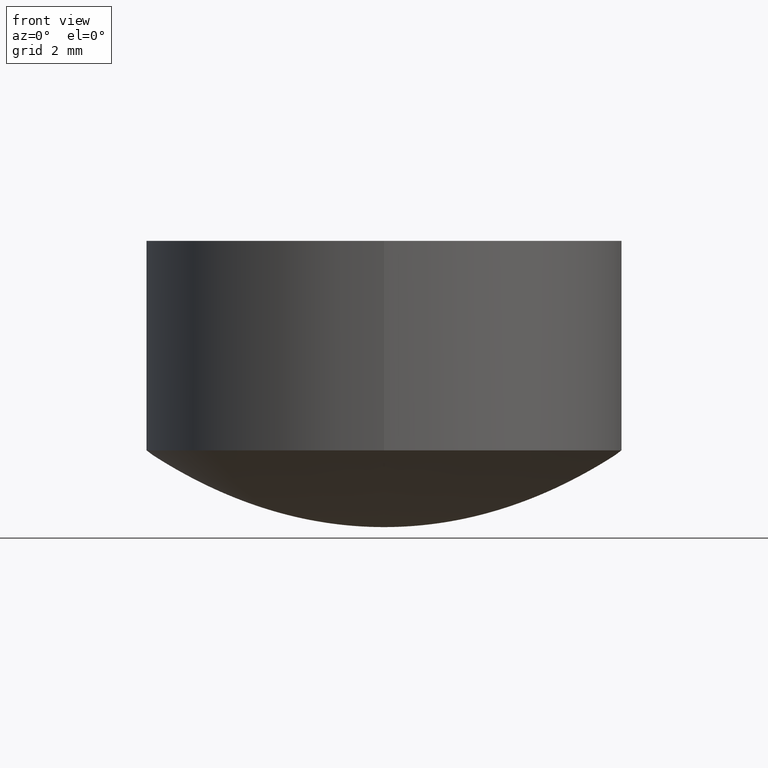
[diagram: clean part render]
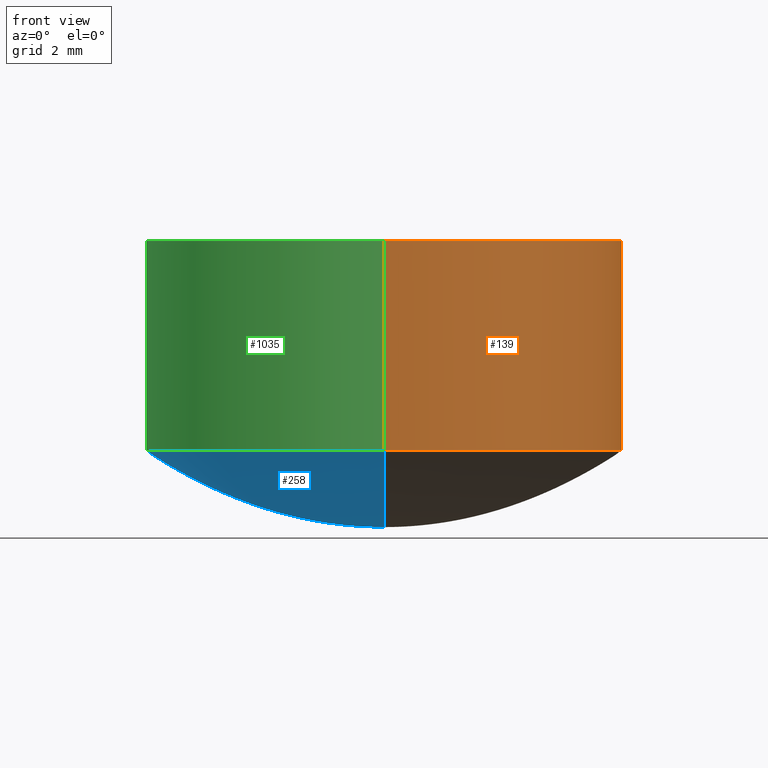
[diagram: same view with three faces highlighted in distinct colors, each labeled with its STEP entity id]
A machine part, front view with three faces highlighted in distinct colors.
Their STEP definitions:

[orange] entity #139 — the highlighted cylindrical surface (partial cylindrical patch) has radius 6.25 mm, axis along (0, 0, -1).
#5 = EDGE_CURVE ( 'NONE', #53, #728, #659, .T. ) ;
#46 = ORIENTED_EDGE ( 'NONE', *, *, #5, .T. ) ;
#53 = VERTEX_POINT ( 'NONE', #892 ) ;
#62 = DIRECTION ( 'NONE',  ( 0.000000000000000000, 1.000000000000000000, 0.000000000000000000 ) ) ;
#77 = CARTESIAN_POINT ( 'NONE',  ( 7.654042494670957606E-16, -6.250000000000000000, 7.875000000000000000 ) ) ;
#127 = DIRECTION ( 'NONE',  ( 0.000000000000000000, 0.000000000000000000, 1.000000000000000000 ) ) ;
#139 = ADVANCED_FACE ( 'NONE', ( #299 ), #644, .T. ) ;
#141 = DIRECTION ( 'NONE',  ( 0.000000000000000000, 0.000000000000000000, -1.000000000000000000 ) ) ;
#142 = VERTEX_POINT ( 'NONE', #884 ) ;
#171 = VECTOR ( 'NONE', #407, 1000.000000000000000 ) ;
#184 = DIRECTION ( 'NONE',  ( 0.000000000000000000, 0.000000000000000000, -1.000000000000000000 ) ) ;
#195 = AXIS2_PLACEMENT_3D ( 'NONE', #555, #386, #244 ) ;
#240 = CARTESIAN_POINT ( 'NONE',  ( 0.000000000000000000, 6.250000000000000000, 7.875000000000000000 ) ) ;
#244 = DIRECTION ( 'NONE',  ( 0.000000000000000000, 1.000000000000000000, 0.000000000000000000 ) ) ;
#284 = VECTOR ( 'NONE', #184, 1000.000000000000000 ) ;
#288 = ORIENTED_EDGE ( 'NONE', *, *, #486, .F. ) ;
#299 = FACE_OUTER_BOUND ( 'NONE', #561, .T. ) ;
#386 = DIRECTION ( 'NONE',  ( 0.000000000000000000, 0.000000000000000000, -1.000000000000000000 ) ) ;
#407 = DIRECTION ( 'NONE',  ( 0.000000000000000000, 0.000000000000000000, -1.000000000000000000 ) ) ;
#486 = EDGE_CURVE ( 'NONE', #53, #960, #490, .T. ) ;
#490 = LINE ( 'NONE', #240, #171 ) ;
#500 = EDGE_CURVE ( 'NONE', #142, #960, #1082, .T. ) ;
#555 = CARTESIAN_POINT ( 'NONE',  ( 0.000000000000000000, 0.000000000000000000, 7.500000000000000000 ) ) ;
#561 = EDGE_LOOP ( 'NONE', ( #46, #886, #733, #288 ) ) ;
#594 = CARTESIAN_POINT ( 'NONE',  ( 7.654042494670957606E-16, -6.250000000000000000, 7.500000000000000000 ) ) ;
#599 = LINE ( 'NONE', #77, #284 ) ;
#644 = CYLINDRICAL_SURFACE ( 'NONE', #932, 6.250000000000000000 ) ;
#659 = CIRCLE ( 'NONE', #195, 6.250000000000000000 ) ;
#721 = CARTESIAN_POINT ( 'NONE',  ( 0.000000000000000000, 0.000000000000000000, 7.875000000000000000 ) ) ;
#728 = VERTEX_POINT ( 'NONE', #594 ) ;
#733 = ORIENTED_EDGE ( 'NONE', *, *, #500, .T. ) ;
#736 = CARTESIAN_POINT ( 'NONE',  ( 0.000000000000000000, 0.000000000000000000, 2.011993405105170218 ) ) ;
#765 = CARTESIAN_POINT ( 'NONE',  ( 0.000000000000000000, 6.250000000000000000, 2.011993405105170218 ) ) ;
#788 = AXIS2_PLACEMENT_3D ( 'NONE', #736, #127, #1042 ) ;
#884 = CARTESIAN_POINT ( 'NONE',  ( 7.654042494670957606E-16, -6.250000000000000000, 2.011993405105170218 ) ) ;
#886 = ORIENTED_EDGE ( 'NONE', *, *, #959, .T. ) ;
#892 = CARTESIAN_POINT ( 'NONE',  ( 0.000000000000000000, 6.250000000000000000, 7.500000000000000000 ) ) ;
#932 = AXIS2_PLACEMENT_3D ( 'NONE', #721, #141, #62 ) ;
#959 = EDGE_CURVE ( 'NONE', #728, #142, #599, .T. ) ;
#960 = VERTEX_POINT ( 'NONE', #765 ) ;
#1042 = DIRECTION ( 'NONE',  ( 0.000000000000000000, 1.000000000000000000, 0.000000000000000000 ) ) ;
#1082 = CIRCLE ( 'NONE', #788, 6.250000000000000000 ) ;

[blue] entity #258 — the highlighted face is a freeform B-spline surface patch.
#1 = CARTESIAN_POINT ( 'NONE',  ( -3.189184372779570394E-17, -0.2604166666666670182, 0.003158548302291759938 ) ) ;
#3 = CARTESIAN_POINT ( 'NONE',  ( 0.000000000000000000, 5.403645833333329485, 1.490662127284529959 ) ) ;
#4 = CARTESIAN_POINT ( 'NONE',  ( -8.463541666666658969, -4.231770833333329485, 0.9046987737912409733 ) ) ;
#8 = CARTESIAN_POINT ( 'NONE',  ( -1.692708333333333703, -0.8463541666666668517, 0.03539781309837600198 ) ) ;
#10 = CARTESIAN_POINT ( 'NONE',  ( 0.000000000000000000, 5.533854166666669627, 1.565382453900790116 ) ) ;
#11 = CARTESIAN_POINT ( 'NONE',  ( 0.000000000000000000, 3.255208333333329929, 0.5315591981719010040 ) ) ;
#14 = CARTESIAN_POINT ( 'NONE',  ( -6.378368745559127230E-17, -0.5208333333333330373, 0.01326836802159780081 ) ) ;
#16 = CARTESIAN_POINT ( 'NONE',  ( 0.000000000000000000, 5.338541666666670515, 1.454036125696430037 ) ) ;
#17 = CARTESIAN_POINT ( 'NONE',  ( -4.225669293932920496E-16, -3.450520833333330373, 0.5980296746302240507 ) ) ;
#20 = CARTESIAN_POINT ( 'NONE',  ( 0.000000000000000000, 4.427083333333329485, 0.9917192555910387952 ) ) ;
#21 = CARTESIAN_POINT ( 'NONE',  ( -4.943235777808322740E-16, -4.036458333333330373, 0.8218521257202150432 ) ) ;
#24 = CARTESIAN_POINT ( 'NONE',  ( 0.000000000000000000, 1.041666666666670071, 0.05374797635312900113 ) ) ;
#25 = CARTESIAN_POINT ( 'NONE',  ( -5.598958333333338366, -2.799479166666668739, 0.3920531115882679996 ) ) ;
#29 = CARTESIAN_POINT ( 'NONE',  ( 0.000000000000000000, 0.06510416666666669905, 0.000000000000000000 ) ) ;
#32 = CARTESIAN_POINT ( 'NONE',  ( -7.161458333333340143, -3.580729166666669627, 0.6445915719321291260 ) ) ;
#37 = CARTESIAN_POINT ( 'NONE',  ( 0.000000000000000000, 1.302083333333329929, 0.08414911724075489763 ) ) ;
#39 = CARTESIAN_POINT ( 'NONE',  ( 0.000000000000000000, 5.794270833333330373, 1.720722017432400053 ) ) ;
#40 = CARTESIAN_POINT ( 'NONE',  ( 0.000000000000000000, 1.432291666666670071, 0.1019000922679149934 ) ) ;
#41 = CARTESIAN_POINT ( 'NONE',  ( -4.427083333333338366, -2.213541666666669183, 0.2443439133051079903 ) ) ;
#44 = CARTESIAN_POINT ( 'NONE',  ( -7.972960931948918898E-17, -0.6510416666666670737, 0.02085353383561979954 ) ) ;
#48 =( BOUNDED_SURFACE ( )  B_SPLINE_SURFACE ( 3, 3, ( 
 ( #121, #302, #895, #1062 ),
 ( #984, #309, #631, #315 ),
 ( #891, #471, #980, #639 ),
 ( #403, #320, #651, #476 ),
 ( #973, #465, #221, #794 ),
 ( #39, #226, #968, #217 ),
 ( #801, #1058, #131, #835 ),
 ( #568, #332, #993, #162 ),
 ( #415, #413, #494, #740 ),
 ( #496, #927, #744, #1080 ),
 ( #155, #1077, #660, #1000 ),
 ( #79, #418, #251, #241 ),
 ( #68, #918, #667, #914 ),
 ( #575, #654, #749, #326 ),
 ( #826, #564, #329, #656 ),
 ( #503, #921, #933, #75 ),
 ( #499, #150, #243, #910 ),
 ( #340, #1005, #571, #996 ),
 ( #71, #256, #246, #582 ),
 ( #147, #821, #831, #168 ),
 ( #509, #841, #84, #409 ),
 ( #425, #755, #4, #347 ),
 ( #673, #737, #1074, #849 ),
 ( #860, #946, #96, #21 ),
 ( #531, #285, #695, #103 ),
 ( #537, #191, #876, #91 ),
 ( #432, #761, #1024, #454 ),
 ( #685, #445, #766, #438 ),
 ( #197, #855, #32, #361 ),
 ( #679, #515, #375, #17 ),
 ( #870, #773, #587, #273 ),
 ( #11, #1018, #449, #185 ),
 ( #114, #934, #178, #520 ),
 ( #268, #204, #785, #279 ),
 ( #525, #355, #601, #595 ),
 ( #940, #366, #690, #1029 ),
 ( #109, #780, #25, #605 ),
 ( #955, #950, #370, #1034 ),
 ( #610, #1011, #262, #556 ),
 ( #719, #462, #540, #1049 ),
 ( #881, #815, #123, #547 ),
 ( #474, #798, #136, #643 ),
 ( #629, #790, #41, #229 ),
 ( #61, #636, #55, #49 ),
 ( #703, #983, #307, #893 ),
 ( #224, #398, #1044, #804 ),
 ( #977, #559, #129, #889 ),
 ( #468, #1040, #140, #972 ),
 ( #1061, #897, #480, #297 ),
 ( #903, #551, #810, #214 ),
 ( #384, #487, #291, #712 ),
 ( #37, #117, #300, #219 ),
 ( #617, #390, #1056, #961 ),
 ( #381, #208, #621, #708 ),
 ( #725, #313, #966, #164 ),
 ( #838, #259, #909, #923 ),
 ( #357, #87, #8, #735 ),
 ( #406, #351, #434, #670 ),
 ( #650, #1008, #1015, #146 ),
 ( #428, #319, #663, #14 ),
 ( #929, #584, #343, #579 ),
 ( #846, #682, #264, #591 ),
 ( #402, #1002, #239, #1 ),
 ( #492, #563, #420, #942 ),
 ( #81, #172, #507, #752 ),
 ( #676, #253, #522, #512 ) ),
 .UNSPECIFIED., .F., .F., .T. ) 
 B_SPLINE_SURFACE_WITH_KNOTS ( ( 4, 2, 2, 2, 2, 2, 2, 2, 2, 2, 2, 2, 2, 2, 2, 2, 2, 2, 2, 2, 2, 2, 2, 2, 2, 2, 2, 2, 2, 2, 2, 2, 4 ),
 ( 4, 4 ),
 ( -1.000000000000000000, -0.9687500000000000000, -0.9375000000000000000, -0.9062500000000000000, -0.8750000000000000000, -0.8437500000000000000, -0.8125000000000000000, -0.7812500000000000000, -0.7500000000000000000, -0.7187500000000000000, -0.6875000000000000000, -0.6562500000000000000, -0.6250000000000000000, -0.5937500000000000000, -0.5625000000000000000, -0.5312500000000000000, -0.5000000000000000000, -0.4687500000000000000, -0.4375000000000000000, -0.4062500000000000000, -0.3750000000000000000, -0.3437500000000000000, -0.3125000000000000000, -0.2812500000000000000, -0.2500000000000000000, -0.2187500000000000000, -0.1875000000000000000, -0.1562500000000000000, -0.1250000000000000000, -0.09375000000000000000, -0.06250000000000000000, -0.03125000000000000000, 0.000000000000000000 ),
 ( 0.000000000000000000, 1.000000000000000000 ),
 .UNSPECIFIED. ) 
 GEOMETRIC_REPRESENTATION_ITEM ( )  RATIONAL_B_SPLINE_SURFACE ( (
 ( 1.000000000000000000, 0.3333333333333334259, 0.3333333333333334259, 1.000000000000000000),
 ( 1.000000000000000000, 0.3333333333333334259, 0.3333333333333334259, 1.000000000000000000),
 ( 1.000000000000000000, 0.3333333333333334259, 0.3333333333333334259, 1.000000000000000000),
 ( 1.000000000000000000, 0.3333333333333334259, 0.3333333333333334259, 1.000000000000000000),
 ( 1.000000000000000000, 0.3333333333333334259, 0.3333333333333334259, 1.000000000000000000),
 ( 1.000000000000000000, 0.3333333333333334259, 0.3333333333333334259, 1.000000000000000000),
 ( 1.000000000000000000, 0.3333333333333334259, 0.3333333333333334259, 1.000000000000000000),
 ( 1.000000000000000000, 0.3333333333333334259, 0.3333333333333334259, 1.000000000000000000),
 ( 1.000000000000000000, 0.3333333333333334259, 0.3333333333333334259, 1.000000000000000000),
 ( 1.000000000000000000, 0.3333333333333334259, 0.3333333333333334259, 1.000000000000000000),
 ( 1.000000000000000000, 0.3333333333333334259, 0.3333333333333334259, 1.000000000000000000),
 ( 1.000000000000000000, 0.3333333333333334259, 0.3333333333333334259, 1.000000000000000000),
 ( 1.000000000000000000, 0.3333333333333334259, 0.3333333333333334259, 1.000000000000000000),
 ( 1.000000000000000000, 0.3333333333333334259, 0.3333333333333334259, 1.000000000000000000),
 ( 1.000000000000000000, 0.3333333333333334259, 0.3333333333333334259, 1.000000000000000000),
 ( 1.000000000000000000, 0.3333333333333334259, 0.3333333333333334259, 1.000000000000000000),
 ( 1.000000000000000000, 0.3333333333333334259, 0.3333333333333334259, 1.000000000000000000),
 ( 1.000000000000000000, 0.3333333333333334259, 0.3333333333333334259, 1.000000000000000000),
 ( 1.000000000000000000, 0.3333333333333334259, 0.3333333333333334259, 1.000000000000000000),
 ( 1.000000000000000000, 0.3333333333333334259, 0.3333333333333334259, 1.000000000000000000),
 ( 1.000000000000000000, 0.3333333333333334259, 0.3333333333333334259, 1.000000000000000000),
 ( 1.000000000000000000, 0.3333333333333334259, 0.3333333333333334259, 1.000000000000000000),
 ( 1.000000000000000000, 0.3333333333333334259, 0.3333333333333334259, 1.000000000000000000),
 ( 1.000000000000000000, 0.3333333333333334259, 0.3333333333333334259, 1.000000000000000000),
 ( 1.000000000000000000, 0.3333333333333334259, 0.3333333333333334259, 1.000000000000000000),
 ( 1.000000000000000000, 0.3333333333333334259, 0.3333333333333334259, 1.000000000000000000),
 ( 1.000000000000000000, 0.3333333333333334259, 0.3333333333333334259, 1.000000000000000000),
 ( 1.000000000000000000, 0.3333333333333334259, 0.3333333333333334259, 1.000000000000000000),
 ( 1.000000000000000000, 0.3333333333333334259, 0.3333333333333334259, 1.000000000000000000),
 ( 1.000000000000000000, 0.3333333333333334259, 0.3333333333333334259, 1.000000000000000000),
 ( 1.000000000000000000, 0.3333333333333334259, 0.3333333333333334259, 1.000000000000000000),
 ( 1.000000000000000000, 0.3333333333333334259, 0.3333333333333334259, 1.000000000000000000),
 ( 1.000000000000000000, 0.3333333333333334259, 0.3333333333333334259, 1.000000000000000000),
 ( 1.000000000000000000, 0.3333333333333334259, 0.3333333333333334259, 1.000000000000000000),
 ( 1.000000000000000000, 0.3333333333333334259, 0.3333333333333334259, 1.000000000000000000),
 ( 1.000000000000000000, 0.3333333333333334259, 0.3333333333333334259, 1.000000000000000000),
 ( 1.000000000000000000, 0.3333333333333334259, 0.3333333333333334259, 1.000000000000000000),
 ( 1.000000000000000000, 0.3333333333333334259, 0.3333333333333334259, 1.000000000000000000),
 ( 1.000000000000000000, 0.3333333333333334259, 0.3333333333333334259, 1.000000000000000000),
 ( 1.000000000000000000, 0.3333333333333334259, 0.3333333333333334259, 1.000000000000000000),
 ( 1.000000000000000000, 0.3333333333333334259, 0.3333333333333334259, 1.000000000000000000),
 ( 1.000000000000000000, 0.3333333333333334259, 0.3333333333333334259, 1.000000000000000000),
 ( 1.000000000000000000, 0.3333333333333334259, 0.3333333333333334259, 1.000000000000000000),
 ( 1.000000000000000000, 0.3333333333333334259, 0.3333333333333334259, 1.000000000000000000),
 ( 1.000000000000000000, 0.3333333333333334259, 0.3333333333333334259, 1.000000000000000000),
 ( 1.000000000000000000, 0.3333333333333334259, 0.3333333333333334259, 1.000000000000000000),
 ( 1.000000000000000000, 0.3333333333333334259, 0.3333333333333334259, 1.000000000000000000),
 ( 1.000000000000000000, 0.3333333333333334259, 0.3333333333333334259, 1.000000000000000000),
 ( 1.000000000000000000, 0.3333333333333334259, 0.3333333333333334259, 1.000000000000000000),
 ( 1.000000000000000000, 0.3333333333333334259, 0.3333333333333334259, 1.000000000000000000),
 ( 1.000000000000000000, 0.3333333333333334259, 0.3333333333333334259, 1.000000000000000000),
 ( 1.000000000000000000, 0.3333333333333334259, 0.3333333333333334259, 1.000000000000000000),
 ( 1.000000000000000000, 0.3333333333333334259, 0.3333333333333334259, 1.000000000000000000),
 ( 1.000000000000000000, 0.3333333333333334259, 0.3333333333333334259, 1.000000000000000000),
 ( 1.000000000000000000, 0.3333333333333334259, 0.3333333333333334259, 1.000000000000000000),
 ( 1.000000000000000000, 0.3333333333333334259, 0.3333333333333334259, 1.000000000000000000),
 ( 1.000000000000000000, 0.3333333333333334259, 0.3333333333333334259, 1.000000000000000000),
 ( 1.000000000000000000, 0.3333333333333334259, 0.3333333333333334259, 1.000000000000000000),
 ( 1.000000000000000000, 0.3333333333333334259, 0.3333333333333334259, 1.000000000000000000),
 ( 1.000000000000000000, 0.3333333333333334259, 0.3333333333333334259, 1.000000000000000000),
 ( 1.000000000000000000, 0.3333333333333334259, 0.3333333333333334259, 1.000000000000000000),
 ( 1.000000000000000000, 0.3333333333333334259, 0.3333333333333334259, 1.000000000000000000),
 ( 1.000000000000000000, 0.3333333333333334259, 0.3333333333333334259, 1.000000000000000000),
 ( 1.000000000000000000, 0.3333333333333334259, 0.3333333333333334259, 1.000000000000000000),
 ( 1.000000000000000000, 0.3333333333333334259, 0.3333333333333334259, 1.000000000000000000),
 ( 1.000000000000000000, 0.3333333333333334259, 0.3333333333333334259, 1.000000000000000000) ) ) 
 REPRESENTATION_ITEM ( '' )  SURFACE ( )  );
#49 = CARTESIAN_POINT ( 'NONE',  ( -2.551347498223648427E-16, -2.083333333333330373, 0.2163020075082219829 ) ) ;
#51 = CARTESIAN_POINT ( 'NONE',  ( -2.710806716862634373E-16, -2.213541666666669627, 0.2443439133051079626 ) ) ;
#55 = CARTESIAN_POINT ( 'NONE',  ( -4.166666666666659857, -2.083333333333329929, 0.2163020075082220106 ) ) ;
#57 = CARTESIAN_POINT ( 'NONE',  ( -1.514862577070297956E-16, -1.236979166666670071, 0.07591213951704720020 ) ) ;
#60 = EDGE_CURVE ( 'NONE', #142, #633, #707, .T. ) ;
#61 = CARTESIAN_POINT ( 'NONE',  ( 0.000000000000000000, 2.083333333333330373, 0.2163020075082219829 ) ) ;
#63 = EDGE_LOOP ( 'NONE', ( #911, #133, #457 ) ) ;
#68 = CARTESIAN_POINT ( 'NONE',  ( 0.000000000000000000, 5.143229166666670515, 1.347069312123280183 ) ) ;
#69 = CARTESIAN_POINT ( 'NONE',  ( -6.617557573517594316E-16, -5.403645833333329485, 1.490662127284529959 ) ) ;
#71 = CARTESIAN_POINT ( 'NONE',  ( 0.000000000000000000, 4.557291666666669627, 1.052069468829859966 ) ) ;
#72 = CARTESIAN_POINT ( 'NONE',  ( -3.747291638015985830E-16, -3.059895833333330373, 0.4691095578617149875 ) ) ;
#75 = CARTESIAN_POINT ( 'NONE',  ( -5.899991089642192072E-16, -4.817708333333330373, 1.178419867277990196 ) ) ;
#79 = CARTESIAN_POINT ( 'NONE',  ( 0.000000000000000000, 5.208333333333330373, 1.382239719112129839 ) ) ;
#81 = CARTESIAN_POINT ( 'NONE',  ( 0.000000000000000000, 0.06510416666666669905, 0.000000000000000000 ) ) ;
#84 = CARTESIAN_POINT ( 'NONE',  ( -8.723958333333339255, -4.361979166666669627, 0.9622474257860160751 ) ) ;
#87 = CARTESIAN_POINT ( 'NONE',  ( -1.692708333333333703, 0.8463541666666669627, 0.03539781309837600198 ) ) ;
#89 = CARTESIAN_POINT ( 'NONE',  ( 0.000000000000000000, 2.994791666666670071, 0.4491825398135370073 ) ) ;
#91 = CARTESIAN_POINT ( 'NONE',  ( -4.704046949849854668E-16, -3.841145833333329929, 0.7431461482547900843 ) ) ;
#95 = CARTESIAN_POINT ( 'NONE',  ( 0.000000000000000000, 5.989583333333330373, 1.842436248617159933 ) ) ;
#96 = CARTESIAN_POINT ( 'NONE',  ( -8.072916666666658969, -4.036458333333329485, 0.8218521257202150432 ) ) ;
#101 = CARTESIAN_POINT ( 'NONE',  ( 0.000000000000000000, 4.752604166666669627, 1.146123052034490053 ) ) ;
#103 = CARTESIAN_POINT ( 'NONE',  ( -4.863506168488841600E-16, -3.971354166666670071, 0.7951591232710989443 ) ) ;
#109 = CARTESIAN_POINT ( 'NONE',  ( 0.000000000000000000, 2.799479166666669627, 0.3920531115882679996 ) ) ;
#114 = CARTESIAN_POINT ( 'NONE',  ( 0.000000000000000000, 3.190104166666669627, 0.5102978868124029566 ) ) ;
#117 = CARTESIAN_POINT ( 'NONE',  ( -2.604166666666659857, 1.302083333333329929, 0.08414911724075491151 ) ) ;
#121 = CARTESIAN_POINT ( 'NONE',  ( 0.000000000000000000, 6.250000000000000000, 2.011993405105170218 ) ) ;
#122 = CARTESIAN_POINT ( 'NONE',  ( 0.000000000000000000, 0.9114583333333330373, 0.04109109837064860160 ) ) ;
#123 = CARTESIAN_POINT ( 'NONE',  ( -4.817708333333339255, -2.408854166666669627, 0.2896558781350230261 ) ) ;
#126 = CARTESIAN_POINT ( 'NONE',  ( -1.355403358431311023E-16, -1.106770833333329929, 0.06071156909582089978 ) ) ;
#128 = CARTESIAN_POINT ( 'NONE',  ( -6.378368745559128216E-16, -5.208333333333330373, 1.382239719112129839 ) ) ;
#129 = CARTESIAN_POINT ( 'NONE',  ( -3.645833333333340143, -1.822916666666669627, 0.1653948692137860166 ) ) ;
#131 = CARTESIAN_POINT ( 'NONE',  ( -11.45833333333333748, -5.729166666666667851, 1.681146561684840002 ) ) ;
#133 = ORIENTED_EDGE ( 'NONE', *, *, #339, .F. ) ;
#136 = CARTESIAN_POINT ( 'NONE',  ( -4.557291666666658969, -2.278645833333329485, 0.2590134107874019764 ) ) ;
#137 = CARTESIAN_POINT ( 'NONE',  ( -8.770257025143801790E-17, -0.7161458333333329263, 0.02527903084214990284 ) ) ;
#138 = CARTESIAN_POINT ( 'NONE',  ( -6.856746401476061403E-16, -5.598958333333329485, 1.603476781141630170 ) ) ;
#140 = CARTESIAN_POINT ( 'NONE',  ( -3.385416666666658525, -1.692708333333329263, 0.1425185013666920020 ) ) ;
#142 = VERTEX_POINT ( 'NONE', #884 ) ;
#146 = CARTESIAN_POINT ( 'NONE',  ( -7.972960931948918898E-17, -0.6510416666666670737, 0.02085353383561979954 ) ) ;
#147 = CARTESIAN_POINT ( 'NONE',  ( 0.000000000000000000, 4.427083333333329485, 0.9917192555910387952 ) ) ;
#150 = CARTESIAN_POINT ( 'NONE',  ( -9.505208333333337478, 4.752604166666669627, 1.146123052034490053 ) ) ;
#151 = CARTESIAN_POINT ( 'NONE',  ( -3.508102810057518251E-16, -2.864583333333329929, 0.4106543168688750467 ) ) ;
#155 = CARTESIAN_POINT ( 'NONE',  ( 0.000000000000000000, 5.338541666666670515, 1.454036125696430037 ) ) ;
#161 = CARTESIAN_POINT ( 'NONE',  ( 0.000000000000000000, 4.231770833333330373, 0.9046987737912409733 ) ) ;
#162 = CARTESIAN_POINT ( 'NONE',  ( -6.856746401476061403E-16, -5.598958333333329485, 1.603476781141630170 ) ) ;
#164 = CARTESIAN_POINT ( 'NONE',  ( -1.275673749111830623E-16, -1.041666666666670071, 0.05374797635312900113 ) ) ;
#166 = CARTESIAN_POINT ( 'NONE',  ( 0.000000000000000000, 3.776041666666669627, 0.7178261748412130272 ) ) ;
#168 = CARTESIAN_POINT ( 'NONE',  ( -5.421613433725257899E-16, -4.427083333333329485, 0.9917192555910387952 ) ) ;
#172 = CARTESIAN_POINT ( 'NONE',  ( -0.1302083333333333426, 0.06510416666666668517, 0.000000000000000000 ) ) ;
#178 = CARTESIAN_POINT ( 'NONE',  ( -6.380208333333337478, -3.190104166666668739, 0.5102978868124029566 ) ) ;
#185 = CARTESIAN_POINT ( 'NONE',  ( -3.986480465974452916E-16, -3.255208333333329929, 0.5315591981719010040 ) ) ;
#191 = CARTESIAN_POINT ( 'NONE',  ( -7.682291666666658081, 3.841145833333330373, 0.7431461482547900843 ) ) ;
#197 = CARTESIAN_POINT ( 'NONE',  ( 0.000000000000000000, 3.580729166666670071, 0.6445915719321290149 ) ) ;
#204 = CARTESIAN_POINT ( 'NONE',  ( -6.119791666666658969, 3.059895833333330373, 0.4691095578617149875 ) ) ;
#208 = CARTESIAN_POINT ( 'NONE',  ( -2.213541666666658969, 1.106770833333329929, 0.06071156909582089284 ) ) ;
#214 = CARTESIAN_POINT ( 'NONE',  ( -1.833781014348245936E-16, -1.497395833333329929, 0.1114140896328100067 ) ) ;
#217 = CARTESIAN_POINT ( 'NONE',  ( -7.095935229434529475E-16, -5.794270833333330373, 1.720722017432400053 ) ) ;
#219 = CARTESIAN_POINT ( 'NONE',  ( -1.594592186389778603E-16, -1.302083333333329929, 0.08414911724075489763 ) ) ;
#221 = CARTESIAN_POINT ( 'NONE',  ( -11.84895833333333748, -5.924479166666668739, 1.801366859548939825 ) ) ;
#222 = CARTESIAN_POINT ( 'NONE',  ( -4.464858121891388568E-16, -3.645833333333330373, 0.6685488870468468958 ) ) ;
#224 = CARTESIAN_POINT ( 'NONE',  ( 0.000000000000000000, 1.888020833333329929, 0.1774760299424359977 ) ) ;
#226 = CARTESIAN_POINT ( 'NONE',  ( -11.58854166666665897, 5.794270833333329485, 1.720722017432400053 ) ) ;
#227 = CARTESIAN_POINT ( 'NONE',  ( -4.225669293932920496E-16, -3.450520833333330373, 0.5980296746302240507 ) ) ;
#229 = CARTESIAN_POINT ( 'NONE',  ( -2.710806716862634373E-16, -2.213541666666669627, 0.2443439133051079626 ) ) ;
#231 = CARTESIAN_POINT ( 'NONE',  ( -1.993240232987232621E-16, -1.627604166666670071, 0.1317232941412340153 ) ) ;
#235 = CARTESIAN_POINT ( 'NONE',  ( -5.899991089642192072E-16, -4.817708333333330373, 1.178419867277990196 ) ) ;
#239 = CARTESIAN_POINT ( 'NONE',  ( -0.5208333333333339255, -0.2604166666666669627, 0.003158548302291759938 ) ) ;
#241 = CARTESIAN_POINT ( 'NONE',  ( -6.378368745559128216E-16, -5.208333333333330373, 1.382239719112129839 ) ) ;
#243 = CARTESIAN_POINT ( 'NONE',  ( -9.505208333333337478, -4.752604166666668739, 1.146123052034490053 ) ) ;
#246 = CARTESIAN_POINT ( 'NONE',  ( -9.114583333333337478, -4.557291666666668739, 1.052069468829859966 ) ) ;
#250 = CARTESIAN_POINT ( 'NONE',  ( 0.000000000000000000, 3.385416666666669627, 0.5754250918116350366 ) ) ;
#251 = CARTESIAN_POINT ( 'NONE',  ( -10.41666666666665897, -5.208333333333329485, 1.382239719112129839 ) ) ;
#253 = CARTESIAN_POINT ( 'NONE',  ( 0.000000000000000000, 0.000000000000000000, 0.000000000000000000 ) ) ;
#255 = CARTESIAN_POINT ( 'NONE',  ( 0.000000000000000000, 5.924479166666669627, 1.801366859548940047 ) ) ;
#256 = CARTESIAN_POINT ( 'NONE',  ( -9.114583333333337478, 4.557291666666669627, 1.052069468829859966 ) ) ;
#258 = ADVANCED_FACE ( 'NONE', ( #811 ), #48, .T. ) ;
#259 = CARTESIAN_POINT ( 'NONE',  ( -1.822916666666665630, 0.9114583333333331483, 0.04109109837064859466 ) ) ;
#261 = CARTESIAN_POINT ( 'NONE',  ( 0.000000000000000000, 1.692708333333329929, 0.1425185013666920020 ) ) ;
#262 = CARTESIAN_POINT ( 'NONE',  ( -5.208333333333339255, -2.604166666666669627, 0.3388851808965820389 ) ) ;
#264 = CARTESIAN_POINT ( 'NONE',  ( -0.6510416666666659635, -0.3255208333333329818, 0.005053789343999090002 ) ) ;
#267 = CARTESIAN_POINT ( 'NONE',  ( 0.000000000000000000, 2.278645833333329929, 0.2590134107874019764 ) ) ;
#268 = CARTESIAN_POINT ( 'NONE',  ( 0.000000000000000000, 3.059895833333330373, 0.4691095578617149875 ) ) ;
#272 = CARTESIAN_POINT ( 'NONE',  ( 0.000000000000000000, 4.166666666666670515, 0.8766219504956098696 ) ) ;
#273 = CARTESIAN_POINT ( 'NONE',  ( -4.145939684613439356E-16, -3.385416666666669627, 0.5754250918116350366 ) ) ;
#279 = CARTESIAN_POINT ( 'NONE',  ( -3.747291638015985830E-16, -3.059895833333330373, 0.4691095578617149875 ) ) ;
#285 = CARTESIAN_POINT ( 'NONE',  ( -7.942708333333338366, 3.971354166666670071, 0.7951591232710990553 ) ) ;
#290 = CARTESIAN_POINT ( 'NONE',  ( 0.000000000000000000, 1.497395833333329929, 0.1114140896328100067 ) ) ;
#291 = CARTESIAN_POINT ( 'NONE',  ( -2.864583333333339699, -1.432291666666669627, 0.1019000922679150073 ) ) ;
#297 = CARTESIAN_POINT ( 'NONE',  ( -1.993240232987232621E-16, -1.627604166666670071, 0.1317232941412340153 ) ) ;
#300 = CARTESIAN_POINT ( 'NONE',  ( -2.604166666666659857, -1.302083333333329929, 0.08414911724075491151 ) ) ;
#302 = CARTESIAN_POINT ( 'NONE',  ( -12.49999999999999822, 6.250000000000001776, 2.011993405105169774 ) ) ;
#303 = CARTESIAN_POINT ( 'NONE',  ( -4.624317340530374514E-16, -3.776041666666669627, 0.7178261748412130272 ) ) ;
#307 = CARTESIAN_POINT ( 'NONE',  ( -4.036458333333339255, -2.018229166666669627, 0.2029295990211220091 ) ) ;
#309 = CARTESIAN_POINT ( 'NONE',  ( -12.36979166666665897, 6.184895833333331261, 1.968657738656729883 ) ) ;
#310 = CARTESIAN_POINT ( 'NONE',  ( -4.863506168488841600E-16, -3.971354166666670071, 0.7951591232710989443 ) ) ;
#313 = CARTESIAN_POINT ( 'NONE',  ( -2.083333333333339699, 1.041666666666670071, 0.05374797635312900806 ) ) ;
#315 = CARTESIAN_POINT ( 'NONE',  ( -7.574312885351464633E-16, -6.184895833333330373, 1.968657738656729883 ) ) ;
#319 = CARTESIAN_POINT ( 'NONE',  ( -1.041666666666665853, 0.5208333333333330373, 0.01326836802159780254 ) ) ;
#320 = CARTESIAN_POINT ( 'NONE',  ( -11.97916666666665719, 5.989583333333330373, 1.842436248617159933 ) ) ;
#321 = B_SPLINE_CURVE_WITH_KNOTS ( 'NONE', 3,
 ( #684, #760, #423, #95, #255, #1004, #925, #354, #10, #3, #16, #859, #1023, #931, #748, #346, #101, #672, #772, #20, #581, #161, #272, #365, #678, #519, #166, #848, #508, #998, #250, #514, #1010, #502, #89, #574, #1084, #338, #1017, #920, #840, #267, #833, #417, #430, #666, #754, #261, #586, #290, #40, #1032, #689, #380, #24, #122, #779, #701, #954, #1028, #783, #965, #536, #803, #29, #797 ),
 .UNSPECIFIED., .F., .F.,
 ( 4, 2, 2, 2, 2, 2, 2, 2, 2, 2, 2, 2, 2, 2, 2, 2, 2, 2, 2, 2, 2, 2, 2, 2, 2, 2, 2, 2, 2, 2, 2, 2, 4 ),
 ( -1.000000000000000000, -0.9687500000000000000, -0.9375000000000000000, -0.9062500000000000000, -0.8750000000000000000, -0.8437500000000000000, -0.8125000000000000000, -0.7812500000000000000, -0.7500000000000000000, -0.7187500000000000000, -0.6875000000000000000, -0.6562500000000000000, -0.6250000000000000000, -0.5937500000000000000, -0.5625000000000000000, -0.5312500000000000000, -0.5000000000000000000, -0.4687500000000000000, -0.4375000000000000000, -0.4062500000000000000, -0.3750000000000000000, -0.3437500000000000000, -0.3125000000000000000, -0.2812500000000000000, -0.2500000000000000000, -0.2187500000000000000, -0.1875000000000000000, -0.1562500000000000000, -0.1250000000000000000, -0.09375000000000000000, -0.06250000000000000000, -0.03125000000000000000, 0.000000000000000000 ),
 .UNSPECIFIED. ) ;
#326 = CARTESIAN_POINT ( 'NONE',  ( -6.139179917600660144E-16, -5.013020833333330373, 1.278171498255870064 ) ) ;
#327 = CARTESIAN_POINT ( 'NONE',  ( -5.820261480322710931E-16, -4.752604166666669627, 1.146123052034490053 ) ) ;
#329 = CARTESIAN_POINT ( 'NONE',  ( -9.895833333333339255, -4.947916666666669627, 1.244444089591119962 ) ) ;
#332 = CARTESIAN_POINT ( 'NONE',  ( -11.19791666666665897, 5.598958333333330373, 1.603476781141630170 ) ) ;
#338 = CARTESIAN_POINT ( 'NONE',  ( 0.000000000000000000, 2.669270833333330373, 0.3561685437619440120 ) ) ;
#339 = EDGE_CURVE ( 'NONE', #960, #142, #969, .T. ) ;
#340 = CARTESIAN_POINT ( 'NONE',  ( 0.000000000000000000, 4.622395833333329485, 1.082947853520389803 ) ) ;
#343 = CARTESIAN_POINT ( 'NONE',  ( -0.9114583333333338144, -0.4557291666666668517, 0.01010869919915239820 ) ) ;
#346 = CARTESIAN_POINT ( 'NONE',  ( 0.000000000000000000, 4.817708333333330373, 1.178419867277990196 ) ) ;
#347 = CARTESIAN_POINT ( 'NONE',  ( -5.182424605766790813E-16, -4.231770833333330373, 0.9046987737912409733 ) ) ;
#351 = CARTESIAN_POINT ( 'NONE',  ( -1.432291666666665630, 0.7161458333333329263, 0.02527903084214990284 ) ) ;
#354 = CARTESIAN_POINT ( 'NONE',  ( 0.000000000000000000, 5.598958333333329485, 1.603476781141630170 ) ) ;
#355 = CARTESIAN_POINT ( 'NONE',  ( -5.989583333333338366, 2.994791666666670071, 0.4491825398135370628 ) ) ;
#357 = CARTESIAN_POINT ( 'NONE',  ( 0.000000000000000000, 0.8463541666666670737, 0.03539781309837599504 ) ) ;
#361 = CARTESIAN_POINT ( 'NONE',  ( -4.385128512571906935E-16, -3.580729166666670071, 0.6445915719321290149 ) ) ;
#365 = CARTESIAN_POINT ( 'NONE',  ( 0.000000000000000000, 4.036458333333330373, 0.8218521257202150432 ) ) ;
#366 = CARTESIAN_POINT ( 'NONE',  ( -5.729166666666658969, 2.864583333333329929, 0.4106543168688750467 ) ) ;
#370 = CARTESIAN_POINT ( 'NONE',  ( -5.338541666666659857, -2.669270833333329485, 0.3561685437619440120 ) ) ;
#375 = CARTESIAN_POINT ( 'NONE',  ( -6.901041666666658081, -3.450520833333329040, 0.5980296746302240507 ) ) ;
#380 = CARTESIAN_POINT ( 'NONE',  ( 0.000000000000000000, 1.106770833333329929, 0.06071156909582089978 ) ) ;
#381 = CARTESIAN_POINT ( 'NONE',  ( 0.000000000000000000, 1.106770833333329929, 0.06071156909582089978 ) ) ;
#383 = CARTESIAN_POINT ( 'NONE',  ( -3.029725154140583585E-16, -2.473958333333330373, 0.3056288482151509611 ) ) ;
#384 = CARTESIAN_POINT ( 'NONE',  ( 0.000000000000000000, 1.432291666666670071, 0.1019000922679149934 ) ) ;
#385 = CARTESIAN_POINT ( 'NONE',  ( -1.594592186389779034E-17, -0.1302083333333330095, 0.0006316536323980819585 ) ) ;
#390 = CARTESIAN_POINT ( 'NONE',  ( -2.473958333333339699, 1.236979166666670071, 0.07591213951704720020 ) ) ;
#393 = CARTESIAN_POINT ( 'NONE',  ( -1.036484921153359223E-16, -0.8463541666666670737, 0.03539781309837599504 ) ) ;
#395 = CARTESIAN_POINT ( 'NONE',  ( -5.421613433725257899E-16, -4.427083333333329485, 0.9917192555910387952 ) ) ;
#398 = CARTESIAN_POINT ( 'NONE',  ( -3.776041666666658969, 1.888020833333329929, 0.1774760299424359977 ) ) ;
#399 = CARTESIAN_POINT ( 'NONE',  ( -1.594592186389778603E-16, -1.302083333333329929, 0.08414911724075489763 ) ) ;
#402 = CARTESIAN_POINT ( 'NONE',  ( 0.000000000000000000, 0.2604166666666670182, 0.003158548302291759938 ) ) ;
#403 = CARTESIAN_POINT ( 'NONE',  ( 0.000000000000000000, 5.989583333333330373, 1.842436248617159933 ) ) ;
#406 = CARTESIAN_POINT ( 'NONE',  ( 0.000000000000000000, 0.7161458333333329263, 0.02527903084214990284 ) ) ;
#409 = CARTESIAN_POINT ( 'NONE',  ( -5.341883824405776759E-16, -4.361979166666670515, 0.9622474257860159641 ) ) ;
#411 = CARTESIAN_POINT ( 'NONE',  ( -6.298639136239646090E-16, -5.143229166666670515, 1.347069312123280183 ) ) ;
#413 = CARTESIAN_POINT ( 'NONE',  ( -11.06770833333333925, 5.533854166666669627, 1.565382453900790116 ) ) ;
#415 = CARTESIAN_POINT ( 'NONE',  ( 0.000000000000000000, 5.533854166666669627, 1.565382453900790116 ) ) ;
#417 = CARTESIAN_POINT ( 'NONE',  ( 0.000000000000000000, 2.083333333333330373, 0.2163020075082219829 ) ) ;
#418 = CARTESIAN_POINT ( 'NONE',  ( -10.41666666666665897, 5.208333333333330373, 1.382239719112129839 ) ) ;
#420 = CARTESIAN_POINT ( 'NONE',  ( -0.2604166666666659635, -0.1302083333333329818, 0.0006316536323980819585 ) ) ;
#423 = CARTESIAN_POINT ( 'NONE',  ( 0.000000000000000000, 6.119791666666670515, 1.926081686685339855 ) ) ;
#425 = CARTESIAN_POINT ( 'NONE',  ( 0.000000000000000000, 4.231770833333330373, 0.9046987737912409733 ) ) ;
#428 = CARTESIAN_POINT ( 'NONE',  ( 0.000000000000000000, 0.5208333333333330373, 0.01326836802159780081 ) ) ;
#430 = CARTESIAN_POINT ( 'NONE',  ( 0.000000000000000000, 2.018229166666670071, 0.2029295990211220091 ) ) ;
#432 = CARTESIAN_POINT ( 'NONE',  ( 0.000000000000000000, 3.776041666666669627, 0.7178261748412130272 ) ) ;
#434 = CARTESIAN_POINT ( 'NONE',  ( -1.432291666666665630, -0.7161458333333327042, 0.02527903084214990284 ) ) ;
#438 = CARTESIAN_POINT ( 'NONE',  ( -4.464858121891388568E-16, -3.645833333333330373, 0.6685488870468468958 ) ) ;
#445 = CARTESIAN_POINT ( 'NONE',  ( -7.291666666666659857, 3.645833333333330817, 0.6685488870468468958 ) ) ;
#449 = CARTESIAN_POINT ( 'NONE',  ( -6.510416666666658081, -3.255208333333329040, 0.5315591981719010040 ) ) ;
#454 = CARTESIAN_POINT ( 'NONE',  ( -4.624317340530374514E-16, -3.776041666666669627, 0.7178261748412130272 ) ) ;
#457 = ORIENTED_EDGE ( 'NONE', *, *, #1078, .T. ) ;
#462 = CARTESIAN_POINT ( 'NONE',  ( -4.947916666666658969, 2.473958333333329929, 0.3056288482151509056 ) ) ;
#465 = CARTESIAN_POINT ( 'NONE',  ( -11.84895833333333748, 5.924479166666670515, 1.801366859548939825 ) ) ;
#468 = CARTESIAN_POINT ( 'NONE',  ( 0.000000000000000000, 1.692708333333329929, 0.1425185013666920020 ) ) ;
#471 = CARTESIAN_POINT ( 'NONE',  ( -12.23958333333333748, 6.119791666666671404, 1.926081686685339855 ) ) ;
#474 = CARTESIAN_POINT ( 'NONE',  ( 0.000000000000000000, 2.278645833333329929, 0.2590134107874019764 ) ) ;
#476 = CARTESIAN_POINT ( 'NONE',  ( -7.335124057392997547E-16, -5.989583333333330373, 1.842436248617159933 ) ) ;
#477 = CARTESIAN_POINT ( 'NONE',  ( -6.777016792156581248E-16, -5.533854166666669627, 1.565382453900790116 ) ) ;
#479 = AXIS2_PLACEMENT_3D ( 'NONE', #758, #763, #1021 ) ;
#480 = CARTESIAN_POINT ( 'NONE',  ( -3.255208333333338810, -1.627604166666669405, 0.1317232941412339875 ) ) ;
#483 = CARTESIAN_POINT ( 'NONE',  ( -2.471617888904167287E-16, -2.018229166666670071, 0.2029295990211220091 ) ) ;
#485 = CARTESIAN_POINT ( 'NONE',  ( -4.145939684613439356E-16, -3.385416666666669627, 0.5754250918116350366 ) ) ;
#487 = CARTESIAN_POINT ( 'NONE',  ( -2.864583333333339699, 1.432291666666670071, 0.1019000922679150073 ) ) ;
#488 = CARTESIAN_POINT ( 'NONE',  ( -1.116214530472847389E-16, -0.9114583333333330373, 0.04109109837064860160 ) ) ;
#492 = CARTESIAN_POINT ( 'NONE',  ( 0.000000000000000000, 0.1302083333333330095, 0.0006316536323980819585 ) ) ;
#494 = CARTESIAN_POINT ( 'NONE',  ( -11.06770833333333925, -5.533854166666667851, 1.565382453900790116 ) ) ;
#496 = CARTESIAN_POINT ( 'NONE',  ( 0.000000000000000000, 5.403645833333329485, 1.490662127284529959 ) ) ;
#497 = CARTESIAN_POINT ( 'NONE',  ( -3.986480465974452916E-16, -3.255208333333329929, 0.5315591981719010040 ) ) ;
#499 = CARTESIAN_POINT ( 'NONE',  ( 0.000000000000000000, 4.752604166666669627, 1.146123052034490053 ) ) ;
#502 = CARTESIAN_POINT ( 'NONE',  ( 0.000000000000000000, 3.059895833333330373, 0.4691095578617149875 ) ) ;
#503 = CARTESIAN_POINT ( 'NONE',  ( 0.000000000000000000, 4.817708333333330373, 1.178419867277990196 ) ) ;
#507 = CARTESIAN_POINT ( 'NONE',  ( -0.1302083333333333426, -0.06510416666666667129, 0.000000000000000000 ) ) ;
#508 = CARTESIAN_POINT ( 'NONE',  ( 0.000000000000000000, 3.580729166666670071, 0.6445915719321290149 ) ) ;
#509 = CARTESIAN_POINT ( 'NONE',  ( 0.000000000000000000, 4.361979166666670515, 0.9622474257860159641 ) ) ;
#512 = CARTESIAN_POINT ( 'NONE',  ( 0.000000000000000000, 0.000000000000000000, 0.000000000000000000 ) ) ;
#514 = CARTESIAN_POINT ( 'NONE',  ( 0.000000000000000000, 3.255208333333329929, 0.5315591981719010040 ) ) ;
#515 = CARTESIAN_POINT ( 'NONE',  ( -6.901041666666658081, 3.450520833333329929, 0.5980296746302240507 ) ) ;
#519 = CARTESIAN_POINT ( 'NONE',  ( 0.000000000000000000, 3.841145833333329929, 0.7431461482547900843 ) ) ;
#520 = CARTESIAN_POINT ( 'NONE',  ( -3.906750856654971283E-16, -3.190104166666669627, 0.5102978868124029566 ) ) ;
#522 = CARTESIAN_POINT ( 'NONE',  ( 0.000000000000000000, 0.000000000000000000, 0.000000000000000000 ) ) ;
#525 = CARTESIAN_POINT ( 'NONE',  ( 0.000000000000000000, 2.994791666666670071, 0.4491825398135370073 ) ) ;
#531 = CARTESIAN_POINT ( 'NONE',  ( 0.000000000000000000, 3.971354166666670071, 0.7951591232710989443 ) ) ;
#536 = CARTESIAN_POINT ( 'NONE',  ( 0.000000000000000000, 0.2604166666666670182, 0.003158548302291759938 ) ) ;
#537 = CARTESIAN_POINT ( 'NONE',  ( 0.000000000000000000, 3.841145833333329929, 0.7431461482547900843 ) ) ;
#540 = CARTESIAN_POINT ( 'NONE',  ( -4.947916666666658969, -2.473958333333329485, 0.3056288482151509056 ) ) ;
#542 = CARTESIAN_POINT ( 'NONE',  ( -3.189184372779570394E-17, -0.2604166666666670182, 0.003158548302291759938 ) ) ;
#547 = CARTESIAN_POINT ( 'NONE',  ( -2.949995544821101952E-16, -2.408854166666669627, 0.2896558781350230261 ) ) ;
#550 = CARTESIAN_POINT ( 'NONE',  ( -2.551347498223648427E-16, -2.083333333333330373, 0.2163020075082219829 ) ) ;
#551 = CARTESIAN_POINT ( 'NONE',  ( -2.994791666666658969, 1.497395833333329929, 0.1114140896328100067 ) ) ;
#554 = CARTESIAN_POINT ( 'NONE',  ( -7.972960931948916741E-18, -0.06510416666666669905, 0.000000000000000000 ) ) ;
#556 = CARTESIAN_POINT ( 'NONE',  ( -3.189184372779570025E-16, -2.604166666666670071, 0.3388851808965820389 ) ) ;
#558 = CARTESIAN_POINT ( 'NONE',  ( 0.000000000000000000, 0.000000000000000000, 0.000000000000000000 ) ) ;
#559 = CARTESIAN_POINT ( 'NONE',  ( -3.645833333333339255, 1.822916666666670071, 0.1653948692137860166 ) ) ;
#560 = CARTESIAN_POINT ( 'NONE',  ( -2.232429060945700200E-16, -1.822916666666670071, 0.1653948692137860166 ) ) ;
#563 = CARTESIAN_POINT ( 'NONE',  ( -0.2604166666666659635, 0.1302083333333330095, 0.0006316536323980819585 ) ) ;
#564 = CARTESIAN_POINT ( 'NONE',  ( -9.895833333333339255, 4.947916666666669627, 1.244444089591119962 ) ) ;
#568 = CARTESIAN_POINT ( 'NONE',  ( 0.000000000000000000, 5.598958333333329485, 1.603476781141630170 ) ) ;
#569 = CARTESIAN_POINT ( 'NONE',  ( -3.428373200738036618E-16, -2.799479166666669627, 0.3920531115882679996 ) ) ;
#571 = CARTESIAN_POINT ( 'NONE',  ( -9.244791666666658969, -4.622395833333329485, 1.082947853520390025 ) ) ;
#574 = CARTESIAN_POINT ( 'NONE',  ( 0.000000000000000000, 2.864583333333329929, 0.4106543168688750467 ) ) ;
#575 = CARTESIAN_POINT ( 'NONE',  ( 0.000000000000000000, 5.013020833333330373, 1.278171498255870064 ) ) ;
#579 = CARTESIAN_POINT ( 'NONE',  ( -5.581072652364243106E-17, -0.4557291666666670182, 0.01010869919915239820 ) ) ;
#581 = CARTESIAN_POINT ( 'NONE',  ( 0.000000000000000000, 4.361979166666670515, 0.9622474257860159641 ) ) ;
#582 = CARTESIAN_POINT ( 'NONE',  ( -5.581072652364243845E-16, -4.557291666666669627, 1.052069468829859966 ) ) ;
#584 = CARTESIAN_POINT ( 'NONE',  ( -0.9114583333333337034, 0.4557291666666670182, 0.01010869919915239820 ) ) ;
#586 = CARTESIAN_POINT ( 'NONE',  ( 0.000000000000000000, 1.627604166666670071, 0.1317232941412340153 ) ) ;
#587 = CARTESIAN_POINT ( 'NONE',  ( -6.770833333333337478, -3.385416666666668739, 0.5754250918116350366 ) ) ;
#591 = CARTESIAN_POINT ( 'NONE',  ( -3.986480465974453286E-17, -0.3255208333333330373, 0.005053789343999089134 ) ) ;
#595 = CARTESIAN_POINT ( 'NONE',  ( -3.667562028696504690E-16, -2.994791666666670071, 0.4491825398135370073 ) ) ;
#601 = CARTESIAN_POINT ( 'NONE',  ( -5.989583333333338366, -2.994791666666669183, 0.4491825398135370628 ) ) ;
#605 = CARTESIAN_POINT ( 'NONE',  ( -3.428373200738036618E-16, -2.799479166666669627, 0.3920531115882679996 ) ) ;
#610 = CARTESIAN_POINT ( 'NONE',  ( 0.000000000000000000, 2.604166666666670071, 0.3388851808965820389 ) ) ;
#617 = CARTESIAN_POINT ( 'NONE',  ( 0.000000000000000000, 1.236979166666670071, 0.07591213951704720020 ) ) ;
#621 = CARTESIAN_POINT ( 'NONE',  ( -2.213541666666658969, -1.106770833333329485, 0.06071156909582089284 ) ) ;
#624 = CARTESIAN_POINT ( 'NONE',  ( -1.833781014348245936E-16, -1.497395833333329929, 0.1114140896328100067 ) ) ;
#629 = CARTESIAN_POINT ( 'NONE',  ( 0.000000000000000000, 2.213541666666669627, 0.2443439133051079626 ) ) ;
#631 = CARTESIAN_POINT ( 'NONE',  ( -12.36979166666665897, -6.184895833333329485, 1.968657738656729883 ) ) ;
#632 = CARTESIAN_POINT ( 'NONE',  ( 0.000000000000000000, 0.000000000000000000, 0.000000000000000000 ) ) ;
#633 = VERTEX_POINT ( 'NONE', #632 ) ;
#636 = CARTESIAN_POINT ( 'NONE',  ( -4.166666666666659857, 2.083333333333330373, 0.2163020075082220106 ) ) ;
#639 = CARTESIAN_POINT ( 'NONE',  ( -7.494583276031983493E-16, -6.119791666666670515, 1.926081686685339855 ) ) ;
#640 = CARTESIAN_POINT ( 'NONE',  ( -4.385128512571906935E-16, -3.580729166666670071, 0.6445915719321290149 ) ) ;
#643 = CARTESIAN_POINT ( 'NONE',  ( -2.790536326182116006E-16, -2.278645833333329929, 0.2590134107874019764 ) ) ;
#645 = CARTESIAN_POINT ( 'NONE',  ( -7.574312885351464633E-16, -6.184895833333330373, 1.968657738656729883 ) ) ;
#650 = CARTESIAN_POINT ( 'NONE',  ( 0.000000000000000000, 0.6510416666666670737, 0.02085353383561979954 ) ) ;
#651 = CARTESIAN_POINT ( 'NONE',  ( -11.97916666666665719, -5.989583333333328596, 1.842436248617159933 ) ) ;
#652 = CARTESIAN_POINT ( 'NONE',  ( -7.335124057392997547E-16, -5.989583333333330373, 1.842436248617159933 ) ) ;
#654 = CARTESIAN_POINT ( 'NONE',  ( -10.02604166666665897, 5.013020833333330373, 1.278171498255870064 ) ) ;
#655 = CARTESIAN_POINT ( 'NONE',  ( -4.704046949849854668E-16, -3.841145833333329929, 0.7431461482547900843 ) ) ;
#656 = CARTESIAN_POINT ( 'NONE',  ( -6.059450308281178018E-16, -4.947916666666669627, 1.244444089591119962 ) ) ;
#660 = CARTESIAN_POINT ( 'NONE',  ( -10.67708333333333925, -5.338541666666668739, 1.454036125696430037 ) ) ;
#663 = CARTESIAN_POINT ( 'NONE',  ( -1.041666666666665853, -0.5208333333333329263, 0.01326836802159780254 ) ) ;
#666 = CARTESIAN_POINT ( 'NONE',  ( 0.000000000000000000, 1.888020833333329929, 0.1774760299424359977 ) ) ;
#667 = CARTESIAN_POINT ( 'NONE',  ( -10.28645833333333748, -5.143229166666668739, 1.347069312123280183 ) ) ;
#670 = CARTESIAN_POINT ( 'NONE',  ( -8.770257025143801790E-17, -0.7161458333333329263, 0.02527903084214990284 ) ) ;
#672 = CARTESIAN_POINT ( 'NONE',  ( 0.000000000000000000, 4.622395833333329485, 1.082947853520389803 ) ) ;
#673 = CARTESIAN_POINT ( 'NONE',  ( 0.000000000000000000, 4.166666666666670515, 0.8766219504956098696 ) ) ;
#676 = CARTESIAN_POINT ( 'NONE',  ( 0.000000000000000000, 0.000000000000000000, 0.000000000000000000 ) ) ;
#678 = CARTESIAN_POINT ( 'NONE',  ( 0.000000000000000000, 3.971354166666670071, 0.7951591232710989443 ) ) ;
#679 = CARTESIAN_POINT ( 'NONE',  ( 0.000000000000000000, 3.450520833333330373, 0.5980296746302240507 ) ) ;
#682 = CARTESIAN_POINT ( 'NONE',  ( -0.6510416666666659635, 0.3255208333333330373, 0.005053789343999090002 ) ) ;
#684 = CARTESIAN_POINT ( 'NONE',  ( 0.000000000000000000, 6.250000000000000000, 2.011993405105170218 ) ) ;
#685 = CARTESIAN_POINT ( 'NONE',  ( 0.000000000000000000, 3.645833333333330373, 0.6685488870468468958 ) ) ;
#689 = CARTESIAN_POINT ( 'NONE',  ( 0.000000000000000000, 1.236979166666670071, 0.07591213951704720020 ) ) ;
#690 = CARTESIAN_POINT ( 'NONE',  ( -5.729166666666658969, -2.864583333333329485, 0.4106543168688750467 ) ) ;
#695 = CARTESIAN_POINT ( 'NONE',  ( -7.942708333333338366, -3.971354166666669183, 0.7951591232710990553 ) ) ;
#701 = CARTESIAN_POINT ( 'NONE',  ( 0.000000000000000000, 0.7161458333333329263, 0.02527903084214990284 ) ) ;
#703 = CARTESIAN_POINT ( 'NONE',  ( 0.000000000000000000, 2.018229166666670071, 0.2029295990211220091 ) ) ;
#707 = B_SPLINE_CURVE_WITH_KNOTS ( 'NONE', 3,
 ( #1069, #645, #896, #652, #822, #974, #901, #138, #477, #69, #991, #128, #411, #906, #985, #235, #327, #738, #807, #395, #802, #1075, #1052, #722, #310, #655, #303, #222, #640, #227, #485, #497, #915, #72, #829, #151, #569, #714, #806, #383, #1067, #990, #51, #550, #483, #710, #560, #732, #231, #624, #727, #399, #57, #126, #1046, #488, #393, #137, #44, #899, #904, #816, #542, #385, #554, #558 ),
 .UNSPECIFIED., .F., .F.,
 ( 4, 2, 2, 2, 2, 2, 2, 2, 2, 2, 2, 2, 2, 2, 2, 2, 2, 2, 2, 2, 2, 2, 2, 2, 2, 2, 2, 2, 2, 2, 2, 2, 4 ),
 ( -1.000000000000000000, -0.9687500000000000000, -0.9375000000000000000, -0.9062500000000000000, -0.8750000000000000000, -0.8437500000000000000, -0.8125000000000000000, -0.7812500000000000000, -0.7500000000000000000, -0.7187500000000000000, -0.6875000000000000000, -0.6562500000000000000, -0.6250000000000000000, -0.5937500000000000000, -0.5625000000000000000, -0.5312500000000000000, -0.5000000000000000000, -0.4687500000000000000, -0.4375000000000000000, -0.4062500000000000000, -0.3750000000000000000, -0.3437500000000000000, -0.3125000000000000000, -0.2812500000000000000, -0.2500000000000000000, -0.2187500000000000000, -0.1875000000000000000, -0.1562500000000000000, -0.1250000000000000000, -0.09375000000000000000, -0.06250000000000000000, -0.03125000000000000000, 0.000000000000000000 ),
 .UNSPECIFIED. ) ;
#708 = CARTESIAN_POINT ( 'NONE',  ( -1.355403358431311023E-16, -1.106770833333329929, 0.06071156909582089978 ) ) ;
#710 = CARTESIAN_POINT ( 'NONE',  ( -2.312158670265180848E-16, -1.888020833333329929, 0.1774760299424359977 ) ) ;
#712 = CARTESIAN_POINT ( 'NONE',  ( -1.754051405028765288E-16, -1.432291666666670071, 0.1019000922679149934 ) ) ;
#714 = CARTESIAN_POINT ( 'NONE',  ( -3.268913982099051165E-16, -2.669270833333330373, 0.3561685437619440120 ) ) ;
#719 = CARTESIAN_POINT ( 'NONE',  ( 0.000000000000000000, 2.473958333333330373, 0.3056288482151509611 ) ) ;
#722 = CARTESIAN_POINT ( 'NONE',  ( -4.943235777808322740E-16, -4.036458333333330373, 0.8218521257202150432 ) ) ;
#725 = CARTESIAN_POINT ( 'NONE',  ( 0.000000000000000000, 1.041666666666670071, 0.05374797635312900113 ) ) ;
#727 = CARTESIAN_POINT ( 'NONE',  ( -1.754051405028765288E-16, -1.432291666666670071, 0.1019000922679149934 ) ) ;
#732 = CARTESIAN_POINT ( 'NONE',  ( -2.072969842306713515E-16, -1.692708333333329929, 0.1425185013666920020 ) ) ;
#735 = CARTESIAN_POINT ( 'NONE',  ( -1.036484921153359223E-16, -0.8463541666666670737, 0.03539781309837599504 ) ) ;
#737 = CARTESIAN_POINT ( 'NONE',  ( -8.333333333333337478, 4.166666666666669627, 0.8766219504956099806 ) ) ;
#738 = CARTESIAN_POINT ( 'NONE',  ( -5.660802261683724985E-16, -4.622395833333329485, 1.082947853520389803 ) ) ;
#740 = CARTESIAN_POINT ( 'NONE',  ( -6.777016792156581248E-16, -5.533854166666669627, 1.565382453900790116 ) ) ;
#744 = CARTESIAN_POINT ( 'NONE',  ( -10.80729166666665719, -5.403645833333328596, 1.490662127284529959 ) ) ;
#748 = CARTESIAN_POINT ( 'NONE',  ( 0.000000000000000000, 4.947916666666669627, 1.244444089591119962 ) ) ;
#749 = CARTESIAN_POINT ( 'NONE',  ( -10.02604166666665897, -5.013020833333329485, 1.278171498255870064 ) ) ;
#752 = CARTESIAN_POINT ( 'NONE',  ( -7.972960931948916741E-18, -0.06510416666666669905, 0.000000000000000000 ) ) ;
#754 = CARTESIAN_POINT ( 'NONE',  ( 0.000000000000000000, 1.822916666666670071, 0.1653948692137860166 ) ) ;
#755 = CARTESIAN_POINT ( 'NONE',  ( -8.463541666666658969, 4.231770833333329485, 0.9046987737912409733 ) ) ;
#758 = CARTESIAN_POINT ( 'NONE',  ( 0.000000000000000000, 0.000000000000000000, 2.011993405105170218 ) ) ;
#760 = CARTESIAN_POINT ( 'NONE',  ( 0.000000000000000000, 6.184895833333330373, 1.968657738656729883 ) ) ;
#761 = CARTESIAN_POINT ( 'NONE',  ( -7.552083333333338366, 3.776041666666669627, 0.7178261748412130272 ) ) ;
#763 = DIRECTION ( 'NONE',  ( 0.000000000000000000, 0.000000000000000000, 1.000000000000000000 ) ) ;
#765 = CARTESIAN_POINT ( 'NONE',  ( 0.000000000000000000, 6.250000000000000000, 2.011993405105170218 ) ) ;
#766 = CARTESIAN_POINT ( 'NONE',  ( -7.291666666666659857, -3.645833333333329929, 0.6685488870468468958 ) ) ;
#772 = CARTESIAN_POINT ( 'NONE',  ( 0.000000000000000000, 4.557291666666669627, 1.052069468829859966 ) ) ;
#773 = CARTESIAN_POINT ( 'NONE',  ( -6.770833333333337478, 3.385416666666670071, 0.5754250918116350366 ) ) ;
#779 = CARTESIAN_POINT ( 'NONE',  ( 0.000000000000000000, 0.8463541666666670737, 0.03539781309837599504 ) ) ;
#780 = CARTESIAN_POINT ( 'NONE',  ( -5.598958333333338366, 2.799479166666669627, 0.3920531115882679996 ) ) ;
#783 = CARTESIAN_POINT ( 'NONE',  ( 0.000000000000000000, 0.4557291666666670182, 0.01010869919915239820 ) ) ;
#785 = CARTESIAN_POINT ( 'NONE',  ( -6.119791666666658969, -3.059895833333329485, 0.4691095578617149875 ) ) ;
#790 = CARTESIAN_POINT ( 'NONE',  ( -4.427083333333338366, 2.213541666666669627, 0.2443439133051079903 ) ) ;
#794 = CARTESIAN_POINT ( 'NONE',  ( -7.255394448073515421E-16, -5.924479166666669627, 1.801366859548940047 ) ) ;
#797 = CARTESIAN_POINT ( 'NONE',  ( 0.000000000000000000, 0.000000000000000000, 0.000000000000000000 ) ) ;
#798 = CARTESIAN_POINT ( 'NONE',  ( -4.557291666666658969, 2.278645833333330373, 0.2590134107874019764 ) ) ;
#801 = CARTESIAN_POINT ( 'NONE',  ( 0.000000000000000000, 5.729166666666669627, 1.681146561684840002 ) ) ;
#802 = CARTESIAN_POINT ( 'NONE',  ( -5.341883824405776759E-16, -4.361979166666670515, 0.9622474257860159641 ) ) ;
#803 = CARTESIAN_POINT ( 'NONE',  ( 0.000000000000000000, 0.1302083333333330095, 0.0006316536323980819585 ) ) ;
#804 = CARTESIAN_POINT ( 'NONE',  ( -2.312158670265180848E-16, -1.888020833333329929, 0.1774760299424359977 ) ) ;
#806 = CARTESIAN_POINT ( 'NONE',  ( -3.189184372779570025E-16, -2.604166666666670071, 0.3388851808965820389 ) ) ;
#807 = CARTESIAN_POINT ( 'NONE',  ( -5.581072652364243845E-16, -4.557291666666669627, 1.052069468829859966 ) ) ;
#810 = CARTESIAN_POINT ( 'NONE',  ( -2.994791666666658969, -1.497395833333329485, 0.1114140896328100067 ) ) ;
#811 = FACE_OUTER_BOUND ( 'NONE', #63, .T. ) ;
#815 = CARTESIAN_POINT ( 'NONE',  ( -4.817708333333339255, 2.408854166666669627, 0.2896558781350230261 ) ) ;
#816 = CARTESIAN_POINT ( 'NONE',  ( -3.986480465974453286E-17, -0.3255208333333330373, 0.005053789343999089134 ) ) ;
#821 = CARTESIAN_POINT ( 'NONE',  ( -8.854166666666657193, 4.427083333333330373, 0.9917192555910389062 ) ) ;
#822 = CARTESIAN_POINT ( 'NONE',  ( -7.255394448073515421E-16, -5.924479166666669627, 1.801366859548940047 ) ) ;
#826 = CARTESIAN_POINT ( 'NONE',  ( 0.000000000000000000, 4.947916666666669627, 1.244444089591119962 ) ) ;
#829 = CARTESIAN_POINT ( 'NONE',  ( -3.667562028696504690E-16, -2.994791666666670071, 0.4491825398135370073 ) ) ;
#831 = CARTESIAN_POINT ( 'NONE',  ( -8.854166666666657193, -4.427083333333328596, 0.9917192555910389062 ) ) ;
#833 = CARTESIAN_POINT ( 'NONE',  ( 0.000000000000000000, 2.213541666666669627, 0.2443439133051079626 ) ) ;
#835 = CARTESIAN_POINT ( 'NONE',  ( -7.016205620115047349E-16, -5.729166666666669627, 1.681146561684840002 ) ) ;
#838 = CARTESIAN_POINT ( 'NONE',  ( 0.000000000000000000, 0.9114583333333330373, 0.04109109837064860160 ) ) ;
#840 = CARTESIAN_POINT ( 'NONE',  ( 0.000000000000000000, 2.408854166666669627, 0.2896558781350230261 ) ) ;
#841 = CARTESIAN_POINT ( 'NONE',  ( -8.723958333333339255, 4.361979166666670515, 0.9622474257860160751 ) ) ;
#846 = CARTESIAN_POINT ( 'NONE',  ( 0.000000000000000000, 0.3255208333333330373, 0.005053789343999089134 ) ) ;
#848 = CARTESIAN_POINT ( 'NONE',  ( 0.000000000000000000, 3.645833333333330373, 0.6685488870468468958 ) ) ;
#849 = CARTESIAN_POINT ( 'NONE',  ( -5.102694996447308687E-16, -4.166666666666670515, 0.8766219504956098696 ) ) ;
#855 = CARTESIAN_POINT ( 'NONE',  ( -7.161458333333339255, 3.580729166666670071, 0.6445915719321291260 ) ) ;
#859 = CARTESIAN_POINT ( 'NONE',  ( 0.000000000000000000, 5.208333333333330373, 1.382239719112129839 ) ) ;
#860 = CARTESIAN_POINT ( 'NONE',  ( 0.000000000000000000, 4.036458333333330373, 0.8218521257202150432 ) ) ;
#870 = CARTESIAN_POINT ( 'NONE',  ( 0.000000000000000000, 3.385416666666669627, 0.5754250918116350366 ) ) ;
#876 = CARTESIAN_POINT ( 'NONE',  ( -7.682291666666658969, -3.841145833333329040, 0.7431461482547900843 ) ) ;
#881 = CARTESIAN_POINT ( 'NONE',  ( 0.000000000000000000, 2.408854166666669627, 0.2896558781350230261 ) ) ;
#884 = CARTESIAN_POINT ( 'NONE',  ( 7.654042494670957606E-16, -6.250000000000000000, 2.011993405105170218 ) ) ;
#889 = CARTESIAN_POINT ( 'NONE',  ( -2.232429060945700200E-16, -1.822916666666670071, 0.1653948692137860166 ) ) ;
#891 = CARTESIAN_POINT ( 'NONE',  ( 0.000000000000000000, 6.119791666666670515, 1.926081686685339855 ) ) ;
#893 = CARTESIAN_POINT ( 'NONE',  ( -2.471617888904167287E-16, -2.018229166666670071, 0.2029295990211220091 ) ) ;
#895 = CARTESIAN_POINT ( 'NONE',  ( -12.49999999999999822, -6.249999999999999112, 2.011993405105169774 ) ) ;
#896 = CARTESIAN_POINT ( 'NONE',  ( -7.494583276031983493E-16, -6.119791666666670515, 1.926081686685339855 ) ) ;
#897 = CARTESIAN_POINT ( 'NONE',  ( -3.255208333333338810, 1.627604166666669849, 0.1317232941412339875 ) ) ;
#899 = CARTESIAN_POINT ( 'NONE',  ( -6.378368745559127230E-17, -0.5208333333333330373, 0.01326836802159780081 ) ) ;
#901 = CARTESIAN_POINT ( 'NONE',  ( -7.016205620115047349E-16, -5.729166666666669627, 1.681146561684840002 ) ) ;
#903 = CARTESIAN_POINT ( 'NONE',  ( 0.000000000000000000, 1.497395833333329929, 0.1114140896328100067 ) ) ;
#904 = CARTESIAN_POINT ( 'NONE',  ( -5.581072652364243106E-17, -0.4557291666666670182, 0.01010869919915239820 ) ) ;
#906 = CARTESIAN_POINT ( 'NONE',  ( -6.139179917600660144E-16, -5.013020833333330373, 1.278171498255870064 ) ) ;
#909 = CARTESIAN_POINT ( 'NONE',  ( -1.822916666666666075, -0.9114583333333328152, 0.04109109837064859466 ) ) ;
#910 = CARTESIAN_POINT ( 'NONE',  ( -5.820261480322710931E-16, -4.752604166666669627, 1.146123052034490053 ) ) ;
#911 = ORIENTED_EDGE ( 'NONE', *, *, #60, .F. ) ;
#914 = CARTESIAN_POINT ( 'NONE',  ( -6.298639136239646090E-16, -5.143229166666670515, 1.347069312123280183 ) ) ;
#915 = CARTESIAN_POINT ( 'NONE',  ( -3.906750856654971283E-16, -3.190104166666669627, 0.5102978868124029566 ) ) ;
#918 = CARTESIAN_POINT ( 'NONE',  ( -10.28645833333333748, 5.143229166666670515, 1.347069312123280183 ) ) ;
#920 = CARTESIAN_POINT ( 'NONE',  ( 0.000000000000000000, 2.473958333333330373, 0.3056288482151509611 ) ) ;
#921 = CARTESIAN_POINT ( 'NONE',  ( -9.635416666666657193, 4.817708333333329485, 1.178419867277989974 ) ) ;
#923 = CARTESIAN_POINT ( 'NONE',  ( -1.116214530472847389E-16, -0.9114583333333330373, 0.04109109837064860160 ) ) ;
#925 = CARTESIAN_POINT ( 'NONE',  ( 0.000000000000000000, 5.729166666666669627, 1.681146561684840002 ) ) ;
#927 = CARTESIAN_POINT ( 'NONE',  ( -10.80729166666665719, 5.403645833333329485, 1.490662127284529959 ) ) ;
#929 = CARTESIAN_POINT ( 'NONE',  ( 0.000000000000000000, 0.4557291666666670182, 0.01010869919915239820 ) ) ;
#931 = CARTESIAN_POINT ( 'NONE',  ( 0.000000000000000000, 5.013020833333330373, 1.278171498255870064 ) ) ;
#933 = CARTESIAN_POINT ( 'NONE',  ( -9.635416666666657193, -4.817708333333328596, 1.178419867277989974 ) ) ;
#934 = CARTESIAN_POINT ( 'NONE',  ( -6.380208333333337478, 3.190104166666669183, 0.5102978868124029566 ) ) ;
#940 = CARTESIAN_POINT ( 'NONE',  ( 0.000000000000000000, 2.864583333333329929, 0.4106543168688750467 ) ) ;
#942 = CARTESIAN_POINT ( 'NONE',  ( -1.594592186389779034E-17, -0.1302083333333330095, 0.0006316536323980819585 ) ) ;
#946 = CARTESIAN_POINT ( 'NONE',  ( -8.072916666666658969, 4.036458333333330373, 0.8218521257202150432 ) ) ;
#950 = CARTESIAN_POINT ( 'NONE',  ( -5.338541666666659857, 2.669270833333330373, 0.3561685437619440120 ) ) ;
#954 = CARTESIAN_POINT ( 'NONE',  ( 0.000000000000000000, 0.6510416666666670737, 0.02085353383561979954 ) ) ;
#955 = CARTESIAN_POINT ( 'NONE',  ( 0.000000000000000000, 2.669270833333330373, 0.3561685437619440120 ) ) ;
#960 = VERTEX_POINT ( 'NONE', #765 ) ;
#961 = CARTESIAN_POINT ( 'NONE',  ( -1.514862577070297956E-16, -1.236979166666670071, 0.07591213951704720020 ) ) ;
#965 = CARTESIAN_POINT ( 'NONE',  ( 0.000000000000000000, 0.3255208333333330373, 0.005053789343999089134 ) ) ;
#966 = CARTESIAN_POINT ( 'NONE',  ( -2.083333333333339699, -1.041666666666669849, 0.05374797635312900806 ) ) ;
#968 = CARTESIAN_POINT ( 'NONE',  ( -11.58854166666665897, -5.794270833333327708, 1.720722017432400053 ) ) ;
#969 = CIRCLE ( 'NONE', #479, 6.250000000000000000 ) ;
#972 = CARTESIAN_POINT ( 'NONE',  ( -2.072969842306713515E-16, -1.692708333333329929, 0.1425185013666920020 ) ) ;
#973 = CARTESIAN_POINT ( 'NONE',  ( 0.000000000000000000, 5.924479166666669627, 1.801366859548940047 ) ) ;
#974 = CARTESIAN_POINT ( 'NONE',  ( -7.095935229434529475E-16, -5.794270833333330373, 1.720722017432400053 ) ) ;
#977 = CARTESIAN_POINT ( 'NONE',  ( 0.000000000000000000, 1.822916666666670071, 0.1653948692137860166 ) ) ;
#980 = CARTESIAN_POINT ( 'NONE',  ( -12.23958333333333748, -6.119791666666668739, 1.926081686685339855 ) ) ;
#983 = CARTESIAN_POINT ( 'NONE',  ( -4.036458333333339255, 2.018229166666669627, 0.2029295990211220091 ) ) ;
#984 = CARTESIAN_POINT ( 'NONE',  ( 0.000000000000000000, 6.184895833333330373, 1.968657738656729883 ) ) ;
#985 = CARTESIAN_POINT ( 'NONE',  ( -6.059450308281178018E-16, -4.947916666666669627, 1.244444089591119962 ) ) ;
#990 = CARTESIAN_POINT ( 'NONE',  ( -2.790536326182116006E-16, -2.278645833333329929, 0.2590134107874019764 ) ) ;
#991 = CARTESIAN_POINT ( 'NONE',  ( -6.537827964198114162E-16, -5.338541666666670515, 1.454036125696430037 ) ) ;
#993 = CARTESIAN_POINT ( 'NONE',  ( -11.19791666666665897, -5.598958333333328596, 1.603476781141630170 ) ) ;
#996 = CARTESIAN_POINT ( 'NONE',  ( -5.660802261683724985E-16, -4.622395833333329485, 1.082947853520389803 ) ) ;
#998 = CARTESIAN_POINT ( 'NONE',  ( 0.000000000000000000, 3.450520833333330373, 0.5980296746302240507 ) ) ;
#1000 = CARTESIAN_POINT ( 'NONE',  ( -6.537827964198114162E-16, -5.338541666666670515, 1.454036125696430037 ) ) ;
#1002 = CARTESIAN_POINT ( 'NONE',  ( -0.5208333333333339255, 0.2604166666666670182, 0.003158548302291759938 ) ) ;
#1004 = CARTESIAN_POINT ( 'NONE',  ( 0.000000000000000000, 5.794270833333330373, 1.720722017432400053 ) ) ;
#1005 = CARTESIAN_POINT ( 'NONE',  ( -9.244791666666658969, 4.622395833333330373, 1.082947853520390025 ) ) ;
#1008 = CARTESIAN_POINT ( 'NONE',  ( -1.302083333333333925, 0.6510416666666670737, 0.02085353383561979607 ) ) ;
#1010 = CARTESIAN_POINT ( 'NONE',  ( 0.000000000000000000, 3.190104166666669627, 0.5102978868124029566 ) ) ;
#1011 = CARTESIAN_POINT ( 'NONE',  ( -5.208333333333339255, 2.604166666666670071, 0.3388851808965820389 ) ) ;
#1015 = CARTESIAN_POINT ( 'NONE',  ( -1.302083333333333925, -0.6510416666666669627, 0.02085353383561979607 ) ) ;
#1017 = CARTESIAN_POINT ( 'NONE',  ( 0.000000000000000000, 2.604166666666670071, 0.3388851808965820389 ) ) ;
#1018 = CARTESIAN_POINT ( 'NONE',  ( -6.510416666666658081, 3.255208333333329485, 0.5315591981719010040 ) ) ;
#1021 = DIRECTION ( 'NONE',  ( 0.000000000000000000, 1.000000000000000000, 0.000000000000000000 ) ) ;
#1023 = CARTESIAN_POINT ( 'NONE',  ( 0.000000000000000000, 5.143229166666670515, 1.347069312123280183 ) ) ;
#1024 = CARTESIAN_POINT ( 'NONE',  ( -7.552083333333338366, -3.776041666666669183, 0.7178261748412130272 ) ) ;
#1028 = CARTESIAN_POINT ( 'NONE',  ( 0.000000000000000000, 0.5208333333333330373, 0.01326836802159780081 ) ) ;
#1029 = CARTESIAN_POINT ( 'NONE',  ( -3.508102810057518251E-16, -2.864583333333329929, 0.4106543168688750467 ) ) ;
#1032 = CARTESIAN_POINT ( 'NONE',  ( 0.000000000000000000, 1.302083333333329929, 0.08414911724075489763 ) ) ;
#1034 = CARTESIAN_POINT ( 'NONE',  ( -3.268913982099051165E-16, -2.669270833333330373, 0.3561685437619440120 ) ) ;
#1040 = CARTESIAN_POINT ( 'NONE',  ( -3.385416666666658525, 1.692708333333329707, 0.1425185013666920020 ) ) ;
#1044 = CARTESIAN_POINT ( 'NONE',  ( -3.776041666666658969, -1.888020833333329485, 0.1774760299424359977 ) ) ;
#1046 = CARTESIAN_POINT ( 'NONE',  ( -1.275673749111830623E-16, -1.041666666666670071, 0.05374797635312900113 ) ) ;
#1049 = CARTESIAN_POINT ( 'NONE',  ( -3.029725154140583585E-16, -2.473958333333330373, 0.3056288482151509611 ) ) ;
#1052 = CARTESIAN_POINT ( 'NONE',  ( -5.102694996447308687E-16, -4.166666666666670515, 0.8766219504956098696 ) ) ;
#1056 = CARTESIAN_POINT ( 'NONE',  ( -2.473958333333339699, -1.236979166666669849, 0.07591213951704720020 ) ) ;
#1058 = CARTESIAN_POINT ( 'NONE',  ( -11.45833333333333748, 5.729166666666669627, 1.681146561684840002 ) ) ;
#1061 = CARTESIAN_POINT ( 'NONE',  ( 0.000000000000000000, 1.627604166666670071, 0.1317232941412340153 ) ) ;
#1062 = CARTESIAN_POINT ( 'NONE',  ( -7.654042494670957606E-16, -6.250000000000000000, 2.011993405105170218 ) ) ;
#1067 = CARTESIAN_POINT ( 'NONE',  ( -2.949995544821101952E-16, -2.408854166666669627, 0.2896558781350230261 ) ) ;
#1069 = CARTESIAN_POINT ( 'NONE',  ( 7.654042494670957606E-16, -6.250000000000000000, 2.011993405105170218 ) ) ;
#1074 = CARTESIAN_POINT ( 'NONE',  ( -8.333333333333337478, -4.166666666666668739, 0.8766219504956099806 ) ) ;
#1075 = CARTESIAN_POINT ( 'NONE',  ( -5.182424605766790813E-16, -4.231770833333330373, 0.9046987737912409733 ) ) ;
#1077 = CARTESIAN_POINT ( 'NONE',  ( -10.67708333333333925, 5.338541666666670515, 1.454036125696430037 ) ) ;
#1078 = EDGE_CURVE ( 'NONE', #960, #633, #321, .T. ) ;
#1080 = CARTESIAN_POINT ( 'NONE',  ( -6.617557573517594316E-16, -5.403645833333329485, 1.490662127284529959 ) ) ;
#1084 = CARTESIAN_POINT ( 'NONE',  ( 0.000000000000000000, 2.799479166666669627, 0.3920531115882679996 ) ) ;

[green] entity #1035 — the highlighted cylindrical surface (partial cylindrical patch) has radius 6.25 mm, axis along (0, 0, -1).
#53 = VERTEX_POINT ( 'NONE', #892 ) ;
#58 = ORIENTED_EDGE ( 'NONE', *, *, #784, .T. ) ;
#77 = CARTESIAN_POINT ( 'NONE',  ( 7.654042494670957606E-16, -6.250000000000000000, 7.875000000000000000 ) ) ;
#83 = CARTESIAN_POINT ( 'NONE',  ( 0.000000000000000000, 0.000000000000000000, 7.875000000000000000 ) ) ;
#142 = VERTEX_POINT ( 'NONE', #884 ) ;
#171 = VECTOR ( 'NONE', #407, 1000.000000000000000 ) ;
#176 = DIRECTION ( 'NONE',  ( 0.000000000000000000, 0.000000000000000000, -1.000000000000000000 ) ) ;
#184 = DIRECTION ( 'NONE',  ( 0.000000000000000000, 0.000000000000000000, -1.000000000000000000 ) ) ;
#240 = CARTESIAN_POINT ( 'NONE',  ( 0.000000000000000000, 6.250000000000000000, 7.875000000000000000 ) ) ;
#284 = VECTOR ( 'NONE', #184, 1000.000000000000000 ) ;
#324 = ORIENTED_EDGE ( 'NONE', *, *, #959, .F. ) ;
#334 = AXIS2_PLACEMENT_3D ( 'NONE', #83, #359, #944 ) ;
#339 = EDGE_CURVE ( 'NONE', #960, #142, #969, .T. ) ;
#359 = DIRECTION ( 'NONE',  ( 0.000000000000000000, 0.000000000000000000, -1.000000000000000000 ) ) ;
#407 = DIRECTION ( 'NONE',  ( 0.000000000000000000, 0.000000000000000000, -1.000000000000000000 ) ) ;
#408 = CIRCLE ( 'NONE', #823, 6.250000000000000000 ) ;
#437 = CARTESIAN_POINT ( 'NONE',  ( 0.000000000000000000, 0.000000000000000000, 7.500000000000000000 ) ) ;
#479 = AXIS2_PLACEMENT_3D ( 'NONE', #758, #763, #1021 ) ;
#486 = EDGE_CURVE ( 'NONE', #53, #960, #490, .T. ) ;
#490 = LINE ( 'NONE', #240, #171 ) ;
#524 = CYLINDRICAL_SURFACE ( 'NONE', #334, 6.250000000000000000 ) ;
#594 = CARTESIAN_POINT ( 'NONE',  ( 7.654042494670957606E-16, -6.250000000000000000, 7.500000000000000000 ) ) ;
#599 = LINE ( 'NONE', #77, #284 ) ;
#728 = VERTEX_POINT ( 'NONE', #594 ) ;
#758 = CARTESIAN_POINT ( 'NONE',  ( 0.000000000000000000, 0.000000000000000000, 2.011993405105170218 ) ) ;
#763 = DIRECTION ( 'NONE',  ( 0.000000000000000000, 0.000000000000000000, 1.000000000000000000 ) ) ;
#765 = CARTESIAN_POINT ( 'NONE',  ( 0.000000000000000000, 6.250000000000000000, 2.011993405105170218 ) ) ;
#784 = EDGE_CURVE ( 'NONE', #728, #53, #408, .T. ) ;
#812 = EDGE_LOOP ( 'NONE', ( #324, #58, #1063, #817 ) ) ;
#817 = ORIENTED_EDGE ( 'NONE', *, *, #339, .T. ) ;
#823 = AXIS2_PLACEMENT_3D ( 'NONE', #437, #176, #939 ) ;
#854 = FACE_OUTER_BOUND ( 'NONE', #812, .T. ) ;
#884 = CARTESIAN_POINT ( 'NONE',  ( 7.654042494670957606E-16, -6.250000000000000000, 2.011993405105170218 ) ) ;
#892 = CARTESIAN_POINT ( 'NONE',  ( 0.000000000000000000, 6.250000000000000000, 7.500000000000000000 ) ) ;
#939 = DIRECTION ( 'NONE',  ( 0.000000000000000000, 1.000000000000000000, 0.000000000000000000 ) ) ;
#944 = DIRECTION ( 'NONE',  ( 0.000000000000000000, 1.000000000000000000, 0.000000000000000000 ) ) ;
#959 = EDGE_CURVE ( 'NONE', #728, #142, #599, .T. ) ;
#960 = VERTEX_POINT ( 'NONE', #765 ) ;
#969 = CIRCLE ( 'NONE', #479, 6.250000000000000000 ) ;
#1021 = DIRECTION ( 'NONE',  ( 0.000000000000000000, 1.000000000000000000, 0.000000000000000000 ) ) ;
#1035 = ADVANCED_FACE ( 'NONE', ( #854 ), #524, .T. ) ;
#1063 = ORIENTED_EDGE ( 'NONE', *, *, #486, .T. ) ;